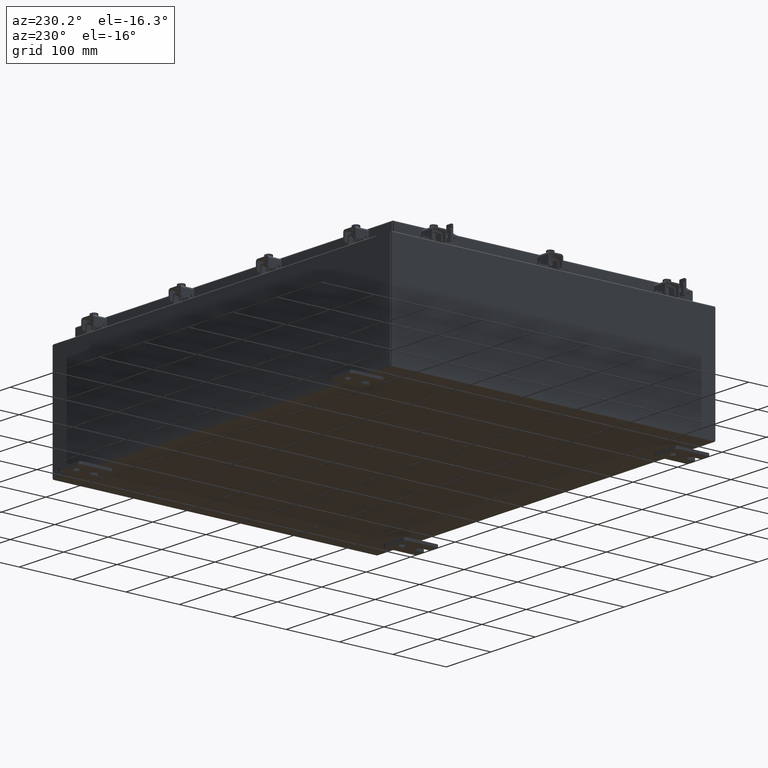
[diagram: clean part render]
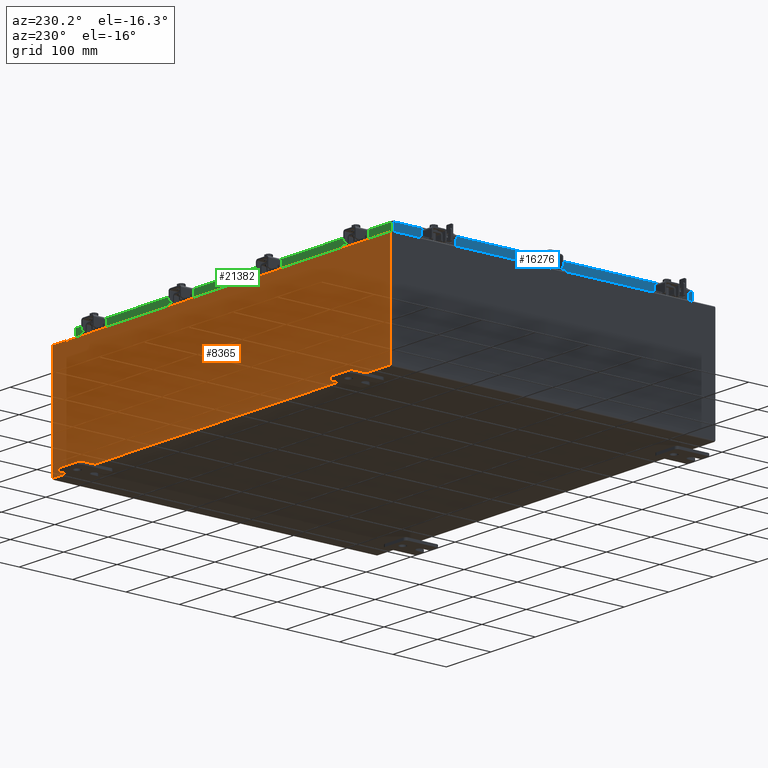
[diagram: same view with three faces highlighted in distinct colors, each labeled with its STEP entity id]
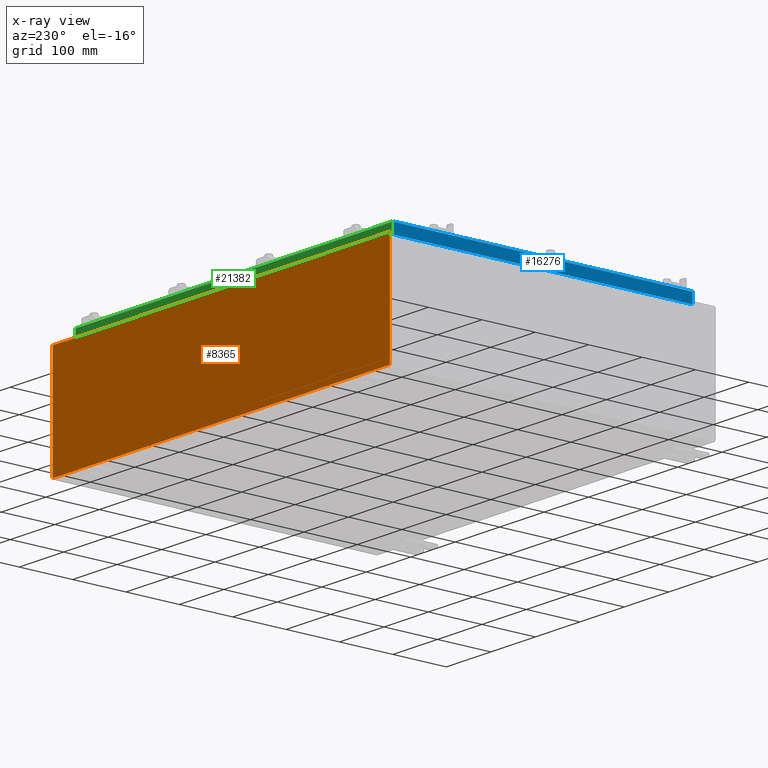
[diagram: x-ray of the same camera — body ghosted, the three highlighted faces saturated]
A machine part, auxiliary view with three faces highlighted in distinct colors.
The next image is the same camera in x-ray (body ghosted, the three faces saturated) — at least one of them is partly hidden behind the body in this view.
Their STEP definitions:

[orange] entity #8365 — the highlighted planar face has unit normal (0, -1, 0).
#76 = EDGE_CURVE ( 'NONE', #20462, #3853, #20026, .T. ) ;
#335 = ORIENTED_EDGE ( 'NONE', *, *, #19180, .T. ) ;
#634 = LINE ( 'NONE', #10076, #1759 ) ;
#638 = DIRECTION ( 'NONE',  ( 0.0000000000000000000, 0.0000000000000000000, -1.000000000000000000 ) ) ;
#797 = ORIENTED_EDGE ( 'NONE', *, *, #5206, .F. ) ;
#1067 = EDGE_CURVE ( 'NONE', #20504, #20462, #21631, .T. ) ;
#1204 = DIRECTION ( 'NONE',  ( 0.0000000000000000000, 0.0000000000000000000, 1.000000000000000000 ) ) ;
#1374 = DIRECTION ( 'NONE',  ( -0.0000000000000000000, -0.0000000000000000000, 1.000000000000000000 ) ) ;
#1473 = VECTOR ( 'NONE', #1204, 39.37007874015748100 ) ;
#1759 = VECTOR ( 'NONE', #1374, 39.37007874015748100 ) ;
#2300 = LINE ( 'NONE', #4259, #15647 ) ;
#2362 = EDGE_CURVE ( 'NONE', #21797, #3853, #19408, .T. ) ;
#2593 = VERTEX_POINT ( 'NONE', #9073 ) ;
#2943 = CARTESIAN_POINT ( 'NONE',  ( -13.63719999999999600, -0.0000000000000000000, 3.874949999999999700 ) ) ;
#2967 = ORIENTED_EDGE ( 'NONE', *, *, #1067, .F. ) ;
#3414 = CARTESIAN_POINT ( 'NONE',  ( -13.63719999999999800, 1.024442997624098700E-016, 3.912299999999999700 ) ) ;
#3567 = VECTOR ( 'NONE', #638, 39.37007874015748100 ) ;
#3853 = VERTEX_POINT ( 'NONE', #19480 ) ;
#4253 = LINE ( 'NONE', #4492, #22277 ) ;
#4259 = CARTESIAN_POINT ( 'NONE',  ( 14.92530000000000200, 0.0000000000000000000, 3.925299999999999600 ) ) ;
#4492 = CARTESIAN_POINT ( 'NONE',  ( 13.67454999999983300, -0.0000000000000000000, -5.935537951421816200E-013 ) ) ;
#4676 = EDGE_LOOP ( 'NONE', ( #10325, #2967, #12268, #17802, #6343, #6606, #797, #335, #16395, #9612, #11278, #13365 ) ) ;
#4816 = CARTESIAN_POINT ( 'NONE',  ( -13.67454999999999500, -0.0000000000000000000, 0.0000000000000000000 ) ) ;
#5031 = EDGE_CURVE ( 'NONE', #7837, #12298, #16806, .T. ) ;
#5206 = EDGE_CURVE ( 'NONE', #16368, #9864, #4253, .T. ) ;
#6123 = CARTESIAN_POINT ( 'NONE',  ( -14.92529999999999800, 0.0000000000000000000, -3.925299999999999600 ) ) ;
#6306 = CARTESIAN_POINT ( 'NONE',  ( -13.67454999999999500, 0.0000000000000000000, 3.874949999999999700 ) ) ;
#6343 = ORIENTED_EDGE ( 'NONE', *, *, #20844, .F. ) ;
#6396 = CARTESIAN_POINT ( 'NONE',  ( 0.0000000000000000000, 0.0000000000000000000, 0.0000000000000000000 ) ) ;
#6606 = ORIENTED_EDGE ( 'NONE', *, *, #9198, .F. ) ;
#7037 = CARTESIAN_POINT ( 'NONE',  ( 13.63720000000000400, 0.0000000000000000000, 3.874949999999999700 ) ) ;
#7045 = CARTESIAN_POINT ( 'NONE',  ( -14.92529999999999800, 0.0000000000000000000, -3.925299999999999600 ) ) ;
#7154 = DIRECTION ( 'NONE',  ( 0.0000000000000000000, 0.0000000000000000000, 1.000000000000000000 ) ) ;
#7201 = FACE_OUTER_BOUND ( 'NONE', #4676, .T. ) ;
#7806 = VECTOR ( 'NONE', #7154, 39.37007874015748100 ) ;
#7837 = VERTEX_POINT ( 'NONE', #22273 ) ;
#8152 = DIRECTION ( 'NONE',  ( 0.0000000000000000000, -1.000000000000000000, 0.0000000000000000000 ) ) ;
#8365 = ADVANCED_FACE ( 'NONE', ( #7201 ), #11470, .F. ) ;
#8522 = DIRECTION ( 'NONE',  ( -0.0000000000000000000, 1.000000000000000000, -0.0000000000000000000 ) ) ;
#8716 = CARTESIAN_POINT ( 'NONE',  ( 13.67455000000000200, 0.0000000000000000000, 3.874949999999999700 ) ) ;
#8936 = DIRECTION ( 'NONE',  ( 1.000000000000000000, 0.0000000000000000000, 0.0000000000000000000 ) ) ;
#9051 = CIRCLE ( 'NONE', #16316, 0.01867499999999949400 ) ;
#9073 = CARTESIAN_POINT ( 'NONE',  ( -13.63719999999999600, 1.024442997624098700E-016, 3.912299999999999700 ) ) ;
#9198 = EDGE_CURVE ( 'NONE', #9864, #17053, #9051, .T. ) ;
#9612 = ORIENTED_EDGE ( 'NONE', *, *, #5031, .T. ) ;
#9864 = VERTEX_POINT ( 'NONE', #8716 ) ;
#10058 = VECTOR ( 'NONE', #8936, 39.37007874015748100 ) ;
#10076 = CARTESIAN_POINT ( 'NONE',  ( -14.92529999999999800, 0.0000000000000000000, 3.925299999999999600 ) ) ;
#10157 = EDGE_CURVE ( 'NONE', #2593, #20504, #21559, .T. ) ;
#10210 = DIRECTION ( 'NONE',  ( 1.000000000000000000, 0.0000000000000000000, 0.0000000000000000000 ) ) ;
#10325 = ORIENTED_EDGE ( 'NONE', *, *, #76, .F. ) ;
#10514 = DIRECTION ( 'NONE',  ( -1.000000000000000000, -0.0000000000000000000, -0.0000000000000000000 ) ) ;
#10548 = CARTESIAN_POINT ( 'NONE',  ( 14.92530000000000200, 0.0000000000000000000, 3.925299999999999600 ) ) ;
#11278 = ORIENTED_EDGE ( 'NONE', *, *, #21809, .T. ) ;
#11470 = PLANE ( 'NONE',  #22334 ) ;
#12032 = CARTESIAN_POINT ( 'NONE',  ( 13.67455000000000400, 0.0000000000000000000, 3.925299999999999600 ) ) ;
#12174 = VECTOR ( 'NONE', #10514, 39.37007874015748100 ) ;
#12268 = ORIENTED_EDGE ( 'NONE', *, *, #10157, .F. ) ;
#12298 = VERTEX_POINT ( 'NONE', #6123 ) ;
#12922 = DIRECTION ( 'NONE',  ( 0.0000000000000000000, 0.0000000000000000000, -1.000000000000000000 ) ) ;
#13365 = ORIENTED_EDGE ( 'NONE', *, *, #2362, .T. ) ;
#13815 = DIRECTION ( 'NONE',  ( 1.000000000000000000, 0.0000000000000000000, 0.0000000000000000000 ) ) ;
#13926 = EDGE_CURVE ( 'NONE', #2593, #16850, #22262, .T. ) ;
#14208 = AXIS2_PLACEMENT_3D ( 'NONE', #18733, #18440, #17989 ) ;
#14744 = EDGE_CURVE ( 'NONE', #17749, #7837, #2300, .T. ) ;
#15647 = VECTOR ( 'NONE', #12922, 39.37007874015748100 ) ;
#15769 = LINE ( 'NONE', #21144, #10058 ) ;
#16316 = AXIS2_PLACEMENT_3D ( 'NONE', #18948, #8522, #20717 ) ;
#16368 = VERTEX_POINT ( 'NONE', #12032 ) ;
#16395 = ORIENTED_EDGE ( 'NONE', *, *, #14744, .T. ) ;
#16668 = DIRECTION ( 'NONE',  ( -4.340572780400004900E-014, 0.0000000000000000000, -1.000000000000000000 ) ) ;
#16806 = LINE ( 'NONE', #7045, #12174 ) ;
#16850 = VERTEX_POINT ( 'NONE', #20455 ) ;
#17012 = CARTESIAN_POINT ( 'NONE',  ( -14.92529999999999800, 0.0000000000000000000, 3.925299999999999600 ) ) ;
#17053 = VERTEX_POINT ( 'NONE', #7037 ) ;
#17075 = LINE ( 'NONE', #19350, #7806 ) ;
#17749 = VERTEX_POINT ( 'NONE', #10548 ) ;
#17802 = ORIENTED_EDGE ( 'NONE', *, *, #13926, .T. ) ;
#17989 = DIRECTION ( 'NONE',  ( 0.0000000000000000000, 0.0000000000000000000, -1.000000000000000000 ) ) ;
#18440 = DIRECTION ( 'NONE',  ( -0.0000000000000000000, 1.000000000000000000, -0.0000000000000000000 ) ) ;
#18733 = CARTESIAN_POINT ( 'NONE',  ( -13.65587499999999600, 0.0000000000000000000, 3.874949999999999700 ) ) ;
#18948 = CARTESIAN_POINT ( 'NONE',  ( 13.65587500000000200, 0.0000000000000000000, 3.874949999999999700 ) ) ;
#19180 = EDGE_CURVE ( 'NONE', #16368, #17749, #15769, .T. ) ;
#19350 = CARTESIAN_POINT ( 'NONE',  ( 13.63720000000000400, 0.0000000000000000000, 0.0000000000000000000 ) ) ;
#19408 = LINE ( 'NONE', #22430, #20501 ) ;
#19480 = CARTESIAN_POINT ( 'NONE',  ( -13.67454999999999500, 0.0000000000000000000, 3.925299999999999600 ) ) ;
#20026 = LINE ( 'NONE', #4816, #1473 ) ;
#20358 = DIRECTION ( 'NONE',  ( 0.0000000000000000000, -0.0000000000000000000, -1.000000000000000000 ) ) ;
#20455 = CARTESIAN_POINT ( 'NONE',  ( 13.63720000000000400, 0.0000000000000000000, 3.912299999999999700 ) ) ;
#20462 = VERTEX_POINT ( 'NONE', #6306 ) ;
#20501 = VECTOR ( 'NONE', #10210, 39.37007874015748100 ) ;
#20504 = VERTEX_POINT ( 'NONE', #2943 ) ;
#20717 = DIRECTION ( 'NONE',  ( 0.0000000000000000000, 0.0000000000000000000, -1.000000000000000000 ) ) ;
#20844 = EDGE_CURVE ( 'NONE', #17053, #16850, #17075, .T. ) ;
#21144 = CARTESIAN_POINT ( 'NONE',  ( -14.92529999999999800, 0.0000000000000000000, 3.925299999999999600 ) ) ;
#21199 = VECTOR ( 'NONE', #13815, 39.37007874015748100 ) ;
#21559 = LINE ( 'NONE', #21579, #3567 ) ;
#21579 = CARTESIAN_POINT ( 'NONE',  ( -13.63719999999999600, -0.0000000000000000000, 0.0000000000000000000 ) ) ;
#21631 = CIRCLE ( 'NONE', #14208, 0.01867499999999949400 ) ;
#21797 = VERTEX_POINT ( 'NONE', #17012 ) ;
#21809 = EDGE_CURVE ( 'NONE', #12298, #21797, #634, .T. ) ;
#22262 = LINE ( 'NONE', #3414, #21199 ) ;
#22273 = CARTESIAN_POINT ( 'NONE',  ( 14.92530000000000200, 0.0000000000000000000, -3.925299999999999600 ) ) ;
#22277 = VECTOR ( 'NONE', #16668, 39.37007874015748100 ) ;
#22334 = AXIS2_PLACEMENT_3D ( 'NONE', #6396, #8152, #20358 ) ;
#22430 = CARTESIAN_POINT ( 'NONE',  ( -14.92529999999999800, 0.0000000000000000000, 3.925299999999999600 ) ) ;

[blue] entity #16276 — the highlighted planar face has unit normal (1, 0, -0).
#196 = CARTESIAN_POINT ( 'NONE',  ( -14.09399999999999900, -11.09399999999999800, -0.8499999999999999800 ) ) ;
#416 = CARTESIAN_POINT ( 'NONE',  ( -14.09399999999999900, 11.00515786437627200, -0.8499999999999966500 ) ) ;
#656 = LINE ( 'NONE', #22388, #18703 ) ;
#844 = EDGE_CURVE ( 'NONE', #9331, #5907, #11509, .T. ) ;
#1483 = DIRECTION ( 'NONE',  ( -0.0000000000000000000, 1.000000000000000000, -0.0000000000000000000 ) ) ;
#2500 = EDGE_CURVE ( 'NONE', #5907, #16096, #20779, .T. ) ;
#2564 = LINE ( 'NONE', #196, #20035 ) ;
#2741 = DIRECTION ( 'NONE',  ( 4.379057701015054300E-047, 1.000000000000000000, 1.169666303398706800E-016 ) ) ;
#4122 = EDGE_CURVE ( 'NONE', #16096, #8739, #17688, .T. ) ;
#4854 = CARTESIAN_POINT ( 'NONE',  ( -14.09399999999999600, -11.00515786437627100, -0.08770000000000026400 ) ) ;
#5832 = ORIENTED_EDGE ( 'NONE', *, *, #844, .F. ) ;
#5907 = VERTEX_POINT ( 'NONE', #4854 ) ;
#6534 = ORIENTED_EDGE ( 'NONE', *, *, #4122, .F. ) ;
#6579 = PLANE ( 'NONE',  #13809 ) ;
#6659 = DIRECTION ( 'NONE',  ( -2.818880942772360100E-015, 0.0000000000000000000, -1.000000000000000000 ) ) ;
#6923 = VECTOR ( 'NONE', #9823, 39.37007874015748100 ) ;
#7101 = CARTESIAN_POINT ( 'NONE',  ( -14.09399999999999600, -11.00515786437626900, -0.07470000000000015500 ) ) ;
#7936 = CARTESIAN_POINT ( 'NONE',  ( -14.09399999999999900, -11.09399999999999800, -0.8499999999999999800 ) ) ;
#8355 = CARTESIAN_POINT ( 'NONE',  ( -14.09399999999999600, 0.0000000000000000000, 4.043135030623109600E-014 ) ) ;
#8739 = VERTEX_POINT ( 'NONE', #17746 ) ;
#8811 = CARTESIAN_POINT ( 'NONE',  ( -14.09399999999999600, 11.00515786437626400, -0.08770000000000026400 ) ) ;
#8869 = CARTESIAN_POINT ( 'NONE',  ( -14.09399999999999600, 11.00515786437626700, 1.169230941288304600E-013 ) ) ;
#8940 = DIRECTION ( 'NONE',  ( -2.818880942772360100E-015, 6.982962677686267500E-015, -1.000000000000000000 ) ) ;
#9331 = VERTEX_POINT ( 'NONE', #8811 ) ;
#9594 = FACE_OUTER_BOUND ( 'NONE', #11571, .T. ) ;
#9823 = DIRECTION ( 'NONE',  ( 3.297150052053608400E-031, -1.000000000000000000, -8.987264781119276500E-046 ) ) ;
#9961 = EDGE_CURVE ( 'NONE', #9331, #20156, #19665, .T. ) ;
#9964 = ORIENTED_EDGE ( 'NONE', *, *, #2500, .F. ) ;
#11509 = LINE ( 'NONE', #18904, #6923 ) ;
#11571 = EDGE_LOOP ( 'NONE', ( #5832, #12549, #20851, #15913, #6534, #9964 ) ) ;
#12321 = DIRECTION ( 'NONE',  ( -2.818880942772360100E-015, 6.982962677686267500E-015, -1.000000000000000000 ) ) ;
#12408 = DIRECTION ( 'NONE',  ( 4.379057701015054300E-047, 1.000000000000000000, 1.169666303398706800E-016 ) ) ;
#12549 = ORIENTED_EDGE ( 'NONE', *, *, #9961, .T. ) ;
#12946 = CARTESIAN_POINT ( 'NONE',  ( -14.09399999999999900, -11.00515786437626400, -0.8499999999999999800 ) ) ;
#13009 = VECTOR ( 'NONE', #2741, 39.37007874015748100 ) ;
#13809 = AXIS2_PLACEMENT_3D ( 'NONE', #8355, #17090, #6659 ) ;
#14953 = VECTOR ( 'NONE', #8940, 39.37007874015748100 ) ;
#15913 = ORIENTED_EDGE ( 'NONE', *, *, #21279, .F. ) ;
#16094 = VECTOR ( 'NONE', #12321, 39.37007874015748100 ) ;
#16096 = VERTEX_POINT ( 'NONE', #12946 ) ;
#16187 = VERTEX_POINT ( 'NONE', #21992 ) ;
#16276 = ADVANCED_FACE ( 'NONE', ( #9594 ), #6579, .F. ) ;
#17090 = DIRECTION ( 'NONE',  ( 1.000000000000000000, 3.297150052053607500E-031, -2.818880942772360100E-015 ) ) ;
#17688 = LINE ( 'NONE', #7936, #13009 ) ;
#17746 = CARTESIAN_POINT ( 'NONE',  ( -14.09399999999999400, -10.25515786437626400, -0.8500000000000010900 ) ) ;
#18703 = VECTOR ( 'NONE', #1483, 39.37007874015748100 ) ;
#18904 = CARTESIAN_POINT ( 'NONE',  ( -14.09399999999999600, -11.09399999999999800, -0.08770000000000026400 ) ) ;
#19665 = LINE ( 'NONE', #8869, #14953 ) ;
#20035 = VECTOR ( 'NONE', #12408, 39.37007874015748100 ) ;
#20156 = VERTEX_POINT ( 'NONE', #416 ) ;
#20779 = LINE ( 'NONE', #7101, #16094 ) ;
#20851 = ORIENTED_EDGE ( 'NONE', *, *, #21995, .F. ) ;
#21279 = EDGE_CURVE ( 'NONE', #8739, #16187, #656, .T. ) ;
#21992 = CARTESIAN_POINT ( 'NONE',  ( -14.09399999999999400, 10.25515786437627200, -0.8500000000000010900 ) ) ;
#21995 = EDGE_CURVE ( 'NONE', #16187, #20156, #2564, .T. ) ;
#22388 = CARTESIAN_POINT ( 'NONE',  ( -14.09399999999999400, -10.25515786437626400, -0.8500000000000010900 ) ) ;

[green] entity #21382 — the highlighted planar face has unit normal (0, -1, -0).
#265 = VERTEX_POINT ( 'NONE', #1269 ) ;
#991 = DIRECTION ( 'NONE',  ( 1.000000000000000000, -0.0000000000000000000, -0.0000000000000000000 ) ) ;
#994 = VECTOR ( 'NONE', #6563, 39.37007874015748100 ) ;
#1191 = CARTESIAN_POINT ( 'NONE',  ( 13.25515786437627100, 11.09399999999999800, -0.8500000000000054200 ) ) ;
#1269 = CARTESIAN_POINT ( 'NONE',  ( 14.00515786437627100, 11.09399999999999900, -0.08770000000000245700 ) ) ;
#1635 = CARTESIAN_POINT ( 'NONE',  ( 14.00515786437627100, 11.09400000000000100, -0.8499999999999999800 ) ) ;
#1866 = VERTEX_POINT ( 'NONE', #15937 ) ;
#2780 = CARTESIAN_POINT ( 'NONE',  ( -13.25515786437626200, 11.09399999999999800, -0.8500000000000054200 ) ) ;
#3104 = DIRECTION ( 'NONE',  ( 0.0000000000000000000, 2.818880942772347100E-015, -1.000000000000000000 ) ) ;
#4280 = EDGE_CURVE ( 'NONE', #5762, #8977, #16026, .T. ) ;
#4421 = CARTESIAN_POINT ( 'NONE',  ( -14.00515786437626400, 11.09399999999999900, -0.07470000000000015500 ) ) ;
#5154 = EDGE_CURVE ( 'NONE', #12956, #5986, #9997, .T. ) ;
#5519 = VECTOR ( 'NONE', #18691, 39.37007874015748100 ) ;
#5762 = VERTEX_POINT ( 'NONE', #6138 ) ;
#5986 = VERTEX_POINT ( 'NONE', #1635 ) ;
#6138 = CARTESIAN_POINT ( 'NONE',  ( -14.00515786437626400, 11.09400000000000100, -0.8500000000000032000 ) ) ;
#6179 = DIRECTION ( 'NONE',  ( -0.0000000000000000000, 2.818880942772347100E-015, -1.000000000000000000 ) ) ;
#6563 = DIRECTION ( 'NONE',  ( 1.000000000000000000, 4.379057701015054300E-047, 1.259898677367511900E-016 ) ) ;
#6996 = CARTESIAN_POINT ( 'NONE',  ( 0.0000000000000000000, 11.09399999999999900, 3.168943672650545400E-014 ) ) ;
#7692 = EDGE_CURVE ( 'NONE', #1866, #5762, #17821, .T. ) ;
#8257 = CARTESIAN_POINT ( 'NONE',  ( -14.09399999999999600, 11.09399999999999900, -0.08770000000000026400 ) ) ;
#8743 = DIRECTION ( 'NONE',  ( 0.0000000000000000000, 2.818880942772347100E-015, -1.000000000000000000 ) ) ;
#8977 = VERTEX_POINT ( 'NONE', #14780 ) ;
#9179 = LINE ( 'NONE', #2780, #13227 ) ;
#9244 = ORIENTED_EDGE ( 'NONE', *, *, #7692, .F. ) ;
#9997 = LINE ( 'NONE', #20051, #14070 ) ;
#10141 = LINE ( 'NONE', #8257, #5519 ) ;
#10703 = ORIENTED_EDGE ( 'NONE', *, *, #21113, .F. ) ;
#11646 = LINE ( 'NONE', #13517, #12201 ) ;
#12201 = VECTOR ( 'NONE', #3104, 39.37007874015748100 ) ;
#12341 = ORIENTED_EDGE ( 'NONE', *, *, #16851, .F. ) ;
#12956 = VERTEX_POINT ( 'NONE', #1191 ) ;
#13138 = VECTOR ( 'NONE', #6179, 39.37007874015748100 ) ;
#13227 = VECTOR ( 'NONE', #991, 39.37007874015748100 ) ;
#13517 = CARTESIAN_POINT ( 'NONE',  ( 14.00515786437627100, 11.09399999999999900, 3.168943672650545400E-014 ) ) ;
#13888 = PLANE ( 'NONE',  #22082 ) ;
#14070 = VECTOR ( 'NONE', #16214, 39.37007874015748100 ) ;
#14780 = CARTESIAN_POINT ( 'NONE',  ( -13.25515786437625800, 11.09399999999999800, -0.8500000000000054200 ) ) ;
#15375 = ORIENTED_EDGE ( 'NONE', *, *, #4280, .F. ) ;
#15937 = CARTESIAN_POINT ( 'NONE',  ( -14.00515786437626400, 11.09399999999999900, -0.08770000000000136000 ) ) ;
#16026 = LINE ( 'NONE', #18755, #994 ) ;
#16214 = DIRECTION ( 'NONE',  ( 1.000000000000000000, 4.379057701015054300E-047, 1.259898677367511900E-016 ) ) ;
#16405 = EDGE_LOOP ( 'NONE', ( #12341, #17301, #17226, #10703, #15375, #9244 ) ) ;
#16851 = EDGE_CURVE ( 'NONE', #265, #1866, #10141, .T. ) ;
#17226 = ORIENTED_EDGE ( 'NONE', *, *, #5154, .F. ) ;
#17301 = ORIENTED_EDGE ( 'NONE', *, *, #19627, .T. ) ;
#17821 = LINE ( 'NONE', #4421, #13138 ) ;
#18691 = DIRECTION ( 'NONE',  ( -1.000000000000000000, -5.737045523120204700E-031, 7.753222629953918800E-017 ) ) ;
#18755 = CARTESIAN_POINT ( 'NONE',  ( -14.09399999999999600, 11.09400000000000100, -0.8500000000000032000 ) ) ;
#19183 = DIRECTION ( 'NONE',  ( 3.551504371455365500E-031, -1.000000000000000000, -2.818880942772347100E-015 ) ) ;
#19627 = EDGE_CURVE ( 'NONE', #265, #5986, #11646, .T. ) ;
#20051 = CARTESIAN_POINT ( 'NONE',  ( -14.09399999999999600, 11.09400000000000100, -0.8500000000000032000 ) ) ;
#21113 = EDGE_CURVE ( 'NONE', #8977, #12956, #9179, .T. ) ;
#21382 = ADVANCED_FACE ( 'NONE', ( #21698 ), #13888, .F. ) ;
#21698 = FACE_OUTER_BOUND ( 'NONE', #16405, .T. ) ;
#22082 = AXIS2_PLACEMENT_3D ( 'NONE', #6996, #19183, #8743 ) ;